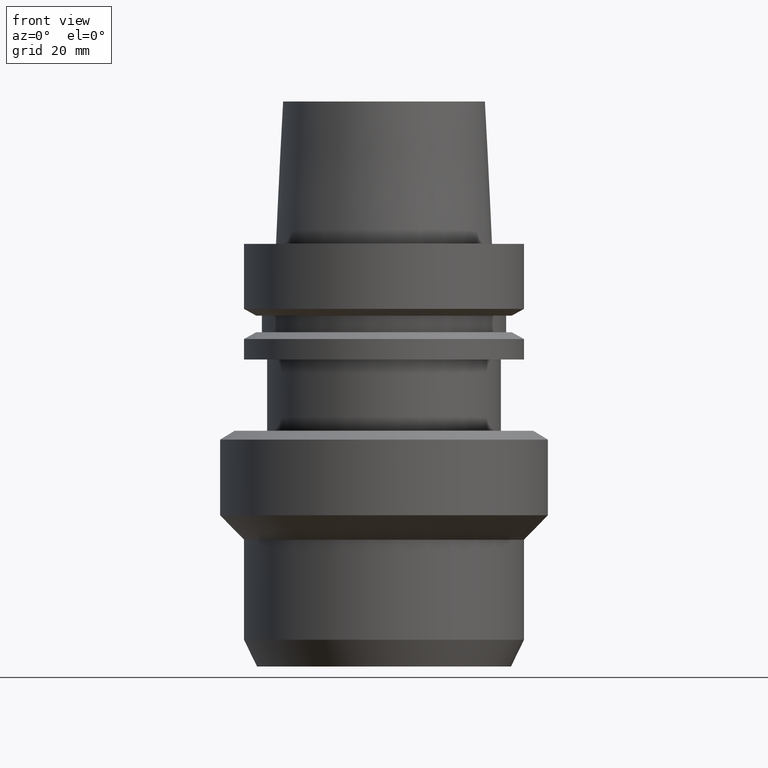
[diagram: clean part render]
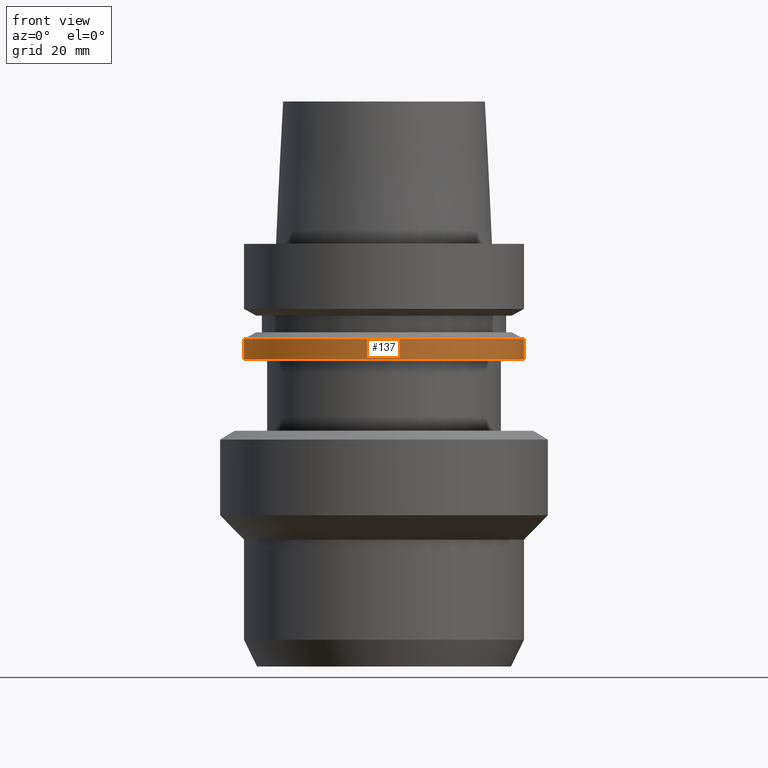
[diagram: same view with one face highlighted and labeled with its STEP entity id]
A machine part, front view. The second image highlights one B-rep face of the part: STEP entity #137.
In plain terms, the highlighted cylindrical surface (bore or boss wall) has radius 31.5 mm, axis along (0, 0, -1).
Its self-contained STEP definition (entity closure, byte-faithful):
#116=EDGE_CURVE('Unnamed[1]',#258,#258,#259,.T.);
#134=EDGE_CURVE('Unnamed[1]',#287,#287,#288,.T.);
#137=ADVANCED_FACE('Unnamed[1]',(#291,#292),#293,.T.);
#258=VERTEX_POINT('',#435);
#259=CIRCLE('',#436,31.4999999999998);
#287=VERTEX_POINT('',#471);
#288=CIRCLE('',#472,31.5);
#291=FACE_BOUND('',#476,.T.);
#292=FACE_BOUND('',#477,.T.);
#293=CYLINDRICAL_SURFACE('',#478,31.4999999999999);
#435=CARTESIAN_POINT('',(1.59204083889155E-015,31.4999999999998,-25.9999999999999));
#436=AXIS2_PLACEMENT_3D('',#610,#611,#612);
#471=CARTESIAN_POINT('',(1.30899429078397E-015,31.5,-21.3774990747592));
#472=AXIS2_PLACEMENT_3D('',#643,#644,#645);
#476=EDGE_LOOP('',(#647));
#477=EDGE_LOOP('',(#648));
#478=AXIS2_PLACEMENT_3D('',#649,#650,#651);
#610=CARTESIAN_POINT('',(1.59204083889155E-015,6.36630006536854E-015,-25.9999999999999));
#611=DIRECTION('',(6.12323399573676E-017,7.79108829899063E-017,-1.0));
#612=DIRECTION('',(-9.59781840438566E-033,1.0,7.79108829899063E-017));
#643=CARTESIAN_POINT('',(1.30899429078397E-015,6.00615693666138E-015,-21.3774990747592));
#644=DIRECTION('',(6.12323399573677E-017,7.79108829899063E-017,-1.0));
#645=DIRECTION('',(-9.59781840438566E-033,1.0,7.79108829899063E-017));
#647=ORIENTED_EDGE('',*,*,#116,.F.);
#648=ORIENTED_EDGE('',*,*,#134,.T.);
#649=CARTESIAN_POINT('',(1.45051756483776E-015,6.18622850101496E-015,-23.6887495373796));
#650=DIRECTION('',(6.12323399573676E-017,7.79108829899063E-017,-1.0));
#651=DIRECTION('',(-9.59781840438566E-033,1.0,7.79108829899063E-017));